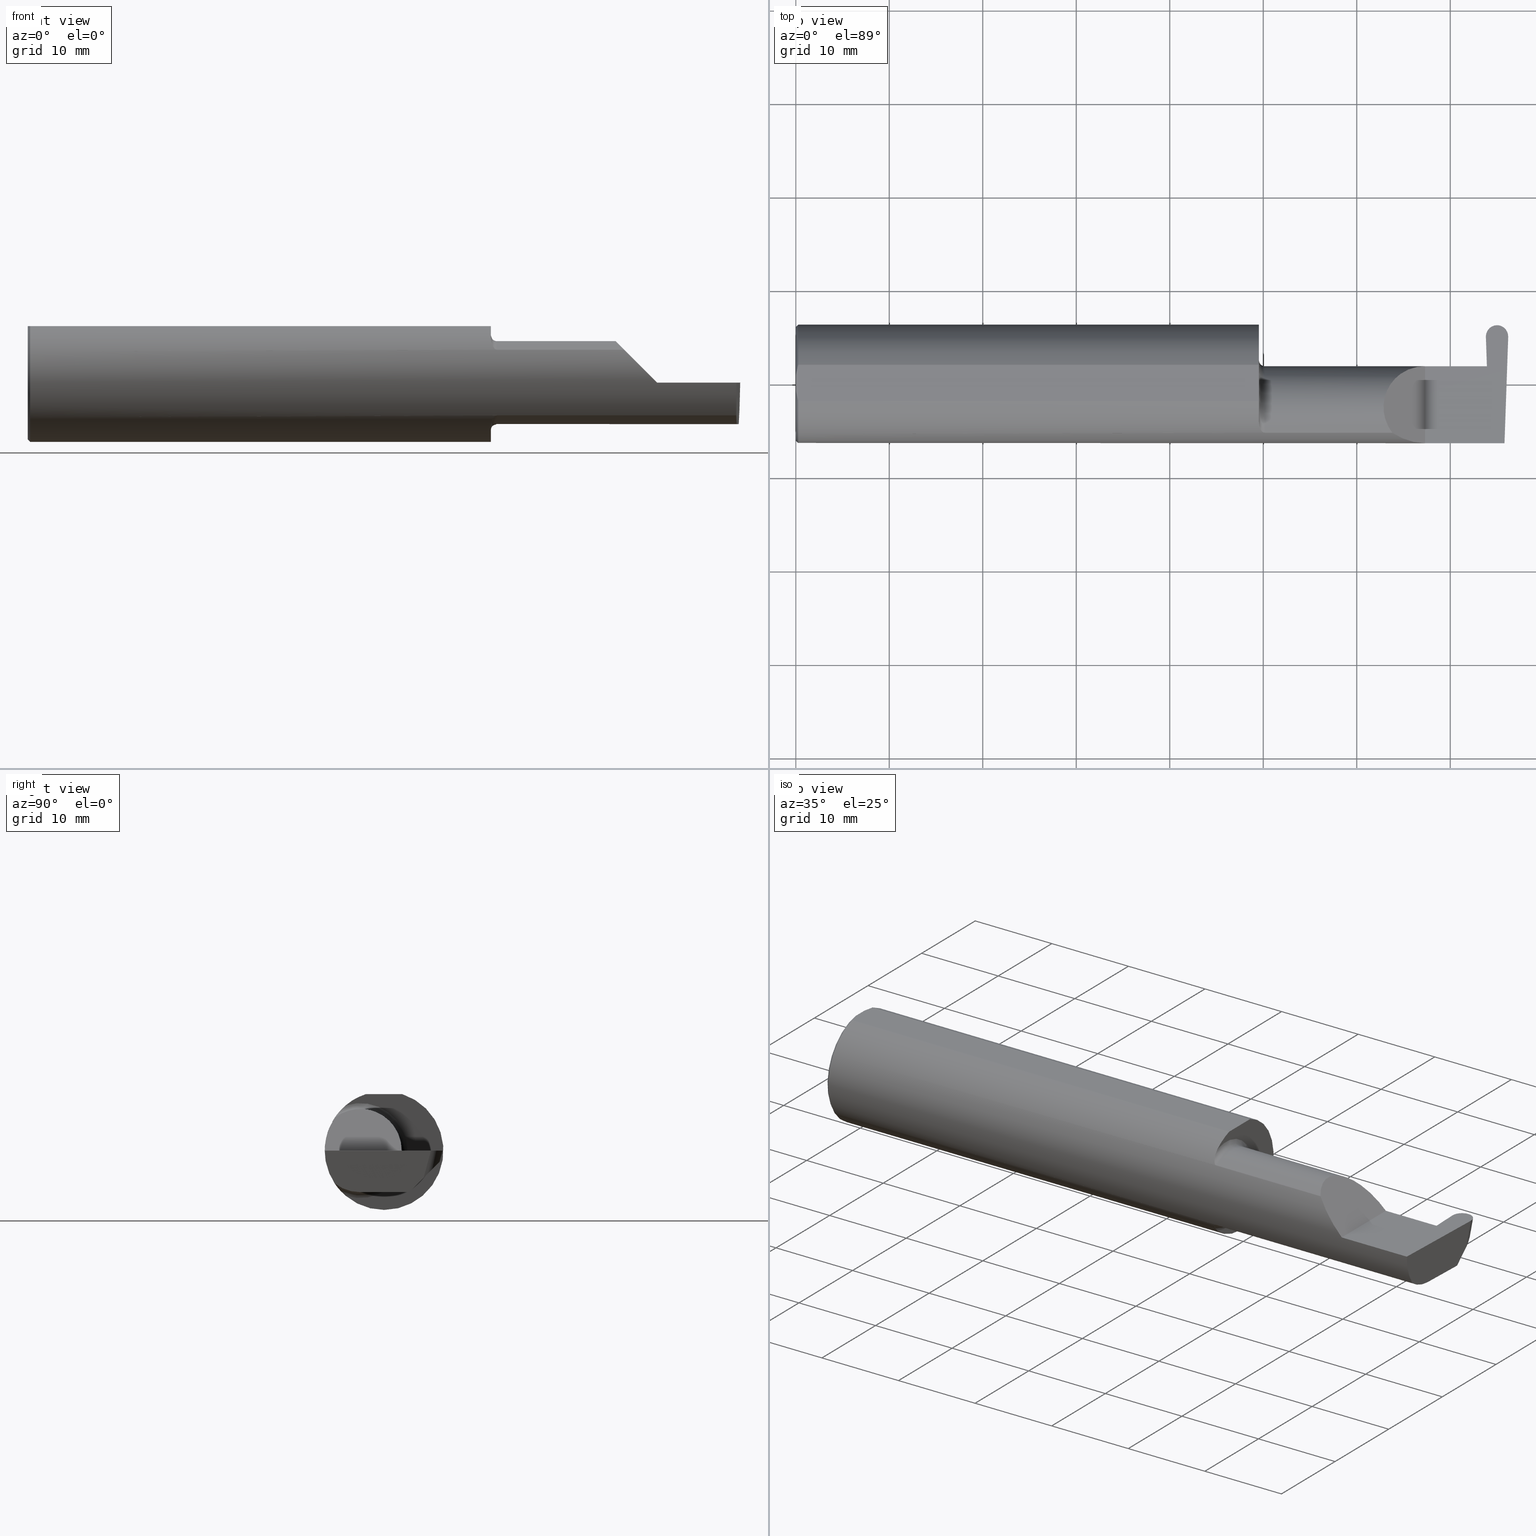
[diagram: canonical four-view strip — front | top / right | iso, engineering-drawing reading convention]
A machine part, canonical four-view strip (front | top / right | iso — engineering-drawing reading convention). The complete STEP part file that produces these views, byte-faithful:
ISO-10303-21;
HEADER;
FILE_DESCRIPTION (( 'STEP AP203' ),
    '1' );
FILE_NAME ('222461-GFR093-16.STEP',
    '2024-06-28T18:32:31',
    ( '' ),
    ( '' ),
    'SwSTEP 2.0',
    'SolidWorks 2024',
    '' );
FILE_SCHEMA (( 'CONFIG_CONTROL_DESIGN' ));
ENDSEC;

DATA;
#1 = LINE ( 'NONE', #58, #426 ) ;
#2 = CARTESIAN_POINT ( 'NONE',  ( 0.009999999999999856226, -0.07650098038587520299, 0.2378499999999998671 ) ) ;
#3 = EDGE_LOOP ( 'NONE', ( #669, #303, #521 ) ) ;
#4 = DIRECTION ( 'NONE',  ( 0.000000000000000000, 0.000000000000000000, 1.000000000000000000 ) ) ;
#5 = CARTESIAN_POINT ( 'NONE',  ( 2.912123349427337082, 0.07056399972054014369, -0.1057442486376025254 ) ) ;
#6 = PLANE ( 'NONE',  #707 ) ;
#7 = ORIENTED_EDGE ( 'NONE', *, *, #548, .T. ) ;
#8 = EDGE_CURVE ( 'NONE', #217, #620, #639, .T. ) ;
#9 = CARTESIAN_POINT ( 'NONE',  ( -0.002039370078740339320, 0.2348243371481683328, -0.04599999999999999922 ) ) ;
#10 = CARTESIAN_POINT ( 'NONE',  ( 2.910321839925223752, 0.07404339472834164937, -0.006107411922940873990 ) ) ;
#11 = CARTESIAN_POINT ( 'NONE',  ( 2.910211446934811264, 0.07414999999999995206, 0.000000000000000000 ) ) ;
#12 = ORIENTED_EDGE ( 'NONE', *, *, #179, .F. ) ;
#13 = AXIS2_PLACEMENT_3D ( 'NONE', #73, #349, #240 ) ;
#14 = APPROVAL_PERSON_ORGANIZATION ( #640, #497, #379 ) ;
#15 = FACE_OUTER_BOUND ( 'NONE', #443, .T. ) ;
#16 = CARTESIAN_POINT ( 'NONE',  ( 2.996855212037247362, 0.1664162189566759098, -0.1144081181914932133 ) ) ;
#17 = CARTESIAN_POINT ( 'NONE',  ( 2.952578855735824348, 0.2471499999999999808, 0.000000000000000000 ) ) ;
#18 = ORIENTED_EDGE ( 'NONE', *, *, #417, .F. ) ;
#19 = DIRECTION ( 'NONE',  ( 0.000000000000000000, -0.7071067811865514585, 0.7071067811865435759 ) ) ;
#20 = DIRECTION ( 'NONE',  ( 0.02590004391968206074, -0.2587322210431824421, -0.9656017944882974158 ) ) ;
#21 = CARTESIAN_POINT ( 'NONE',  ( 2.440421435000000194, -0.2080850024789289432, -0.1382955322609669968 ) ) ;
#22 = EDGE_CURVE ( 'NONE', #187, #171, #465, .T. ) ;
#23 = ORIENTED_EDGE ( 'NONE', *, *, #371, .F. ) ;
#24 = DIRECTION ( 'NONE',  ( -0.7071067811865511255, 0.000000000000000000, 0.7071067811865439090 ) ) ;
#25 = ORIENTED_EDGE ( 'NONE', *, *, #8, .T. ) ;
#26 = PRODUCT_RELATED_PRODUCT_CATEGORY ( 'detail', '', ( #69 ) ) ;
#27 = VECTOR ( 'NONE', #403, 39.37007874015748143 ) ;
#28 = AXIS2_PLACEMENT_3D ( 'NONE', #499, #230, #522 ) ;
#29 = DIRECTION ( 'NONE',  ( -0.03489949670249305885, 0.9993908270190959842, -0.000000000000000000 ) ) ;
#30 = CARTESIAN_POINT ( 'NONE',  ( 0.000000000000000000, 0.000000000000000000, 0.000000000000000000 ) ) ;
#31 = VERTEX_POINT ( 'NONE', #319 ) ;
#32 = B_SPLINE_CURVE_WITH_KNOTS ( 'NONE', 3,
 ( #77, #113, #331, #545 ),
 .UNSPECIFIED., .F., .F.,
 ( 4, 4 ),
 ( 0.000000000000000000, 1.000000000000000000 ),
 .UNSPECIFIED. ) ;
#33 = CARTESIAN_POINT ( 'NONE',  ( 2.953264014264175064, 0.2471499999999999808, 0.000000000000000000 ) ) ;
#34 = DIRECTION ( 'NONE',  ( -0.01806954526206907413, 0.01744955702544858864, 0.9996844524616943506 ) ) ;
#35 = ORIENTED_EDGE ( 'NONE', *, *, #709, .T. ) ;
#36 = CARTESIAN_POINT ( 'NONE',  ( 1.951385488563269988, -0.1808287530430326140, -0.1728790649396286516 ) ) ;
#37 = VERTEX_POINT ( 'NONE', #46 ) ;
#38 = FACE_OUTER_BOUND ( 'NONE', #167, .T. ) ;
#39 = AXIS2_PLACEMENT_3D ( 'NONE', #348, #287, #184 ) ;
#40 = APPROVAL_PERSON_ORGANIZATION ( #44, #311, #165 ) ;
#41 = CARTESIAN_POINT ( 'NONE',  ( 1.971718393013768944, -0.2077830475237240071, 0.1387513848711937614 ) ) ;
#42 = ORIENTED_EDGE ( 'NONE', *, *, #324, .T. ) ;
#43 = CARTESIAN_POINT ( 'NONE',  ( 1.975000000000000089, -0.2080850024789290265, 0.1382955322609667470 ) ) ;
#44 = PERSON_AND_ORGANIZATION ( #668, #581 ) ;
#45 = VECTOR ( 'NONE', #34, 39.37007874015748854 ) ;
#46 = CARTESIAN_POINT ( 'NONE',  ( 2.910321839925223752, 0.07404339472834164937, -0.006107411922940873990 ) ) ;
#47 = ADVANCED_FACE ( 'NONE', ( #154 ), #106, .F. ) ;
#48 =( NAMED_UNIT ( * ) SI_UNIT ( $, .STERADIAN. ) SOLID_ANGLE_UNIT ( ) );
#49 = EDGE_CURVE ( 'NONE', #584, #65, #98, .T. ) ;
#50 = DIRECTION ( 'NONE',  ( -0.03489949670249306579, 0.9993908270190960952, 0.000000000000000000 ) ) ;
#51 = ADVANCED_FACE ( 'NONE', ( #336 ), #68, .T. ) ;
#52 = CARTESIAN_POINT ( 'NONE',  ( 0.000000000000000000, -0.03090954545120560767, 0.2378499999999998671 ) ) ;
#53 = CALENDAR_DATE ( 2024, 28, 6 ) ;
#54 =( BOUNDED_CURVE ( )  B_SPLINE_CURVE ( 3, ( #135, #245, #460, #678 ),
 .UNSPECIFIED., .F., .T. ) 
 B_SPLINE_CURVE_WITH_KNOTS ( ( 4, 4 ),
 ( 1.637964922114648392, 3.237953570749846577 ),
 .UNSPECIFIED. ) 
 CURVE ( )  GEOMETRIC_REPRESENTATION_ITEM ( )  RATIONAL_B_SPLINE_CURVE ( ( 1.000000000000000000, 0.7978071872141893062, 0.7978071872141893062, 1.000000000000000000 ) ) 
 REPRESENTATION_ITEM ( '' )  );
#55 = VECTOR ( 'NONE', #479, 39.37007874015748854 ) ;
#56 = CARTESIAN_POINT ( 'NONE',  ( 2.905918923725884451, 0.1970717818336510108, 0.000000000000000000 ) ) ;
#57 = ORIENTED_EDGE ( 'NONE', *, *, #476, .T. ) ;
#58 = CARTESIAN_POINT ( 'NONE',  ( 1.950000000000000178, 0.07414999999999999369, 1.285879139104719253E-16 ) ) ;
#59 = LINE ( 'NONE', #605, #700 ) ;
#60 = CARTESIAN_POINT ( 'NONE',  ( 2.482823929317965028, 0.07414999999999997982, 0.1671760706820337450 ) ) ;
#61 = ORIENTED_EDGE ( 'NONE', *, *, #508, .F. ) ;
#62 = LINE ( 'NONE', #283, #514 ) ;
#63 = CYLINDRICAL_SURFACE ( 'NONE', #28, 0.1750000000000001277 ) ;
#64 = CARTESIAN_POINT ( 'NONE',  ( 0.000000000000000000, 0.000000000000000000, -0.2398500000000001742 ) ) ;
#65 = VERTEX_POINT ( 'NONE', #612 ) ;
#66 = CARTESIAN_POINT ( 'NONE',  ( 2.914374952050851508, -2.845228123214176286, -0.1794551390957415116 ) ) ;
#67 = CARTESIAN_POINT ( 'NONE',  ( 1.950000000000000178, 0.000000000000000000, 0.000000000000000000 ) ) ;
#68 = CYLINDRICAL_SURFACE ( 'NONE', #210, 0.04700000000000001399 ) ;
#69 = PRODUCT ( '222461-GFR093-16', '222461-GFR093-16', '', ( #532 ) ) ;
#70 = ORIENTED_EDGE ( 'NONE', *, *, #655, .F. ) ;
#71 = VECTOR ( 'NONE', #631, 39.37007874015748143 ) ;
#72 = CARTESIAN_POINT ( 'NONE',  ( 2.984317093749864647, -0.2498499999999999888, 0.000000000000000000 ) ) ;
#73 = CARTESIAN_POINT ( 'NONE',  ( 0.000000000000000000, 0.000000000000000000, 0.000000000000000000 ) ) ;
#74 = ADVANCED_FACE ( 'NONE', ( #130 ), #166, .F. ) ;
#75 = CARTESIAN_POINT ( 'NONE',  ( 1.950000000000000178, 0.2498499999999999888, 0.2378499999999998671 ) ) ;
#76 = ORIENTED_EDGE ( 'NONE', *, *, #255, .F. ) ;
#77 = CARTESIAN_POINT ( 'NONE',  ( 2.899063548541081836, 0.07404339472834169100, -0.006107411922938121851 ) ) ;
#78 = EDGE_CURVE ( 'NONE', #602, #31, #318, .T. ) ;
#79 = VERTEX_POINT ( 'NONE', #385 ) ;
#80 =( LENGTH_UNIT ( ) NAMED_UNIT ( * ) SI_UNIT ( $, .METRE. ) );
#81 = DIRECTION ( 'NONE',  ( 8.931410431717531613E-17, 1.000000000000000000, -0.000000000000000000 ) ) ;
#82 = ORIENTED_EDGE ( 'NONE', *, *, #103, .F. ) ;
#83 = ADVANCED_FACE ( 'NONE', ( #284 ), #116, .F. ) ;
#84 = AXIS2_PLACEMENT_3D ( 'NONE', #66, #180, #614 ) ;
#85 = AXIS2_PLACEMENT_3D ( 'NONE', #124, #235, #599 ) ;
#86 = CARTESIAN_POINT ( 'NONE',  ( 1.975000000000000089, -0.2080850024789289432, -0.1382955322609668025 ) ) ;
#87 = CARTESIAN_POINT ( 'NONE',  ( 2.910211446934811264, 0.07414999999999995206, -9.645561665750315126E-21 ) ) ;
#88 = ORIENTED_EDGE ( 'NONE', *, *, #261, .F. ) ;
#89 = ADVANCED_FACE ( 'NONE', ( #500 ), #175, .T. ) ;
#90 = CARTESIAN_POINT ( 'NONE',  ( 2.905871548989777509, 0.1984284167760241857, 0.000000000000000000 ) ) ;
#91 = ORIENTED_EDGE ( 'NONE', *, *, #272, .T. ) ;
#92 = CARTESIAN_POINT ( 'NONE',  ( 0.009999999999999856226, 0.000000000000000000, -0.2498499999999999888 ) ) ;
#93 = EDGE_LOOP ( 'NONE', ( #435, #586, #270, #225 ) ) ;
#94 = MANIFOLD_SOLID_BREP ( 'Radii', #200 ) ;
#95 = CYLINDRICAL_SURFACE ( 'NONE', #211, 0.2498499999999999888 ) ;
#96 = LOCAL_TIME ( 11, 32, 31.00000000000000000, #104 ) ;
#97 = EDGE_CURVE ( 'NONE', #282, #705, #333, .T. ) ;
#98 = LINE ( 'NONE', #208, #174 ) ;
#99 = ADVANCED_BREP_SHAPE_REPRESENTATION ( '222461-GFR093-16', ( #94, #502 ), #322 ) ;
#100 = COORDINATED_UNIVERSAL_TIME_OFFSET ( 8, 0, .BEHIND. ) ;
#101 = VERTEX_POINT ( 'NONE', #708 ) ;
#102 = ORIENTED_EDGE ( 'NONE', *, *, #542, .T. ) ;
#103 = EDGE_CURVE ( 'NONE', #171, #212, #432, .T. ) ;
#104 = COORDINATED_UNIVERSAL_TIME_OFFSET ( 8, 0, .BEHIND. ) ;
#105 = VECTOR ( 'NONE', #563, 39.37007874015748143 ) ;
#106 = PLANE ( 'NONE',  #321 ) ;
#107 = CC_DESIGN_PERSON_AND_ORGANIZATION_ASSIGNMENT ( #583, #316, ( #345 ) ) ;
#108 = SHAPE_DEFINITION_REPRESENTATION ( #594, #99 ) ;
#109 = ORIENTED_EDGE ( 'NONE', *, *, #265, .T. ) ;
#110 = CARTESIAN_POINT ( 'NONE',  ( -0.002039370078740339320, 0.2471499999999999808, 0.000000000000000000 ) ) ;
#111 = ORIENTED_EDGE ( 'NONE', *, *, #114, .F. ) ;
#112 = DIRECTION ( 'NONE',  ( 0.000000000000000000, 0.000000000000000000, -1.000000000000000000 ) ) ;
#113 = CARTESIAN_POINT ( 'NONE',  ( 2.899099083631634599, 0.07407892981889444006, -0.004071607948625410520 ) ) ;
#114 = EDGE_CURVE ( 'NONE', #282, #428, #394, .T. ) ;
#115 = AXIS2_PLACEMENT_3D ( 'NONE', #292, #134, #112 ) ;
#116 = PLANE ( 'NONE',  #380 ) ;
#117 = VERTEX_POINT ( 'NONE', #662 ) ;
#118 = CARTESIAN_POINT ( 'NONE',  ( 2.952921434999999928, 0.2348123830215256280, -0.04601195412664269707 ) ) ;
#119 = CARTESIAN_POINT ( 'NONE',  ( 2.912161853007074086, 0.1058243371481696893, -0.1750000000000000722 ) ) ;
#120 = CARTESIAN_POINT ( 'NONE',  ( 3.000000000000000444, -0.2500000000000000555, 0.000000000000000000 ) ) ;
#121 = CC_DESIGN_PERSON_AND_ORGANIZATION_ASSIGNMENT ( #320, #706, ( #556 ) ) ;
#122 = ORIENTED_EDGE ( 'NONE', *, *, #97, .T. ) ;
#123 = CARTESIAN_POINT ( 'NONE',  ( 2.999971321010222347, 0.1984284167760241857, 0.000000000000000000 ) ) ;
#124 = CARTESIAN_POINT ( 'NONE',  ( -0.002039370078740339320, 0.2471499999999999808, 0.000000000000000000 ) ) ;
#125 = CARTESIAN_POINT ( 'NONE',  ( 2.910211446934811264, 0.07414999999999995206, 0.000000000000000000 ) ) ;
#126 = ORIENTED_EDGE ( 'NONE', *, *, #574, .F. ) ;
#127 = EDGE_CURVE ( 'NONE', #628, #573, #512, .T. ) ;
#128 = LINE ( 'NONE', #554, #552 ) ;
#129 = CARTESIAN_POINT ( 'NONE',  ( 2.913428848522521708, -0.1008500000000001479, -0.1750000000000000444 ) ) ;
#130 = FACE_OUTER_BOUND ( 'NONE', #547, .T. ) ;
#131 = VECTOR ( 'NONE', #509, 39.37007874015748143 ) ;
#132 = ORIENTED_EDGE ( 'NONE', *, *, #407, .T. ) ;
#133 = CC_DESIGN_PERSON_AND_ORGANIZATION_ASSIGNMENT ( #376, #588, ( #69 ) ) ;
#134 = DIRECTION ( 'NONE',  ( 1.000000000000000000, 0.000000000000000000, 0.000000000000000000 ) ) ;
#135 = CARTESIAN_POINT ( 'NONE',  ( 2.999923946274115405, 0.1970717818336509553, 0.000000000000000000 ) ) ;
#136 = ORIENTED_EDGE ( 'NONE', *, *, #491, .F. ) ;
#137 = LINE ( 'NONE', #353, #105 ) ;
#138 = DIRECTION ( 'NONE',  ( -1.000000000000000000, -0.000000000000000000, -0.000000000000000000 ) ) ;
#139 = LINE ( 'NONE', #193, #71 ) ;
#140 = EDGE_LOOP ( 'NONE', ( #493, #160, #262, #12, #469, #151, #214, #645, #438 ) ) ;
#141 = DIRECTION ( 'NONE',  ( 8.931410431717531613E-17, 1.000000000000000000, 0.000000000000000000 ) ) ;
#142 = DIRECTION ( 'NONE',  ( 1.000000000000000000, -0.000000000000000000, -0.000000000000000000 ) ) ;
#143 = DIRECTION ( 'NONE',  ( -0.03701744261649772549, -0.7066221440565400025, -0.7066221440565478851 ) ) ;
#144 = ORIENTED_EDGE ( 'NONE', *, *, #371, .T. ) ;
#145 = AXIS2_PLACEMENT_3D ( 'NONE', #457, #408, #141 ) ;
#146 = CARTESIAN_POINT ( 'NONE',  ( 2.899170153812740125, 0.07414999999999995206, 0.000000000000000000 ) ) ;
#147 = FACE_OUTER_BOUND ( 'NONE', #3, .T. ) ;
#148 = ORIENTED_EDGE ( 'NONE', *, *, #548, .F. ) ;
#149 = CARTESIAN_POINT ( 'NONE',  ( 2.511704467739031887, -0.2080850024789288599, 0.1382955322609669968 ) ) ;
#150 = EDGE_CURVE ( 'NONE', #613, #282, #451, .T. ) ;
#151 = ORIENTED_EDGE ( 'NONE', *, *, #429, .F. ) ;
#152 = EDGE_CURVE ( 'NONE', #259, #695, #224, .T. ) ;
#153 = CARTESIAN_POINT ( 'NONE',  ( 2.986970135337519761, -0.08635016968773913393, -0.1750000000000000722 ) ) ;
#154 = FACE_OUTER_BOUND ( 'NONE', #264, .T. ) ;
#155 = AXIS2_PLACEMENT_3D ( 'NONE', #125, #398, #340 ) ;
#156 = CARTESIAN_POINT ( 'NONE',  ( 1.968876997637615256, -0.2068363917296600352, 0.1401586554522230021 ) ) ;
#157 = DATE_TIME_ROLE ( 'creation_date' ) ;
#158 = ORIENTED_EDGE ( 'NONE', *, *, #417, .T. ) ;
#159 = APPROVAL_STATUS ( 'not_yet_approved' ) ;
#160 = ORIENTED_EDGE ( 'NONE', *, *, #114, .T. ) ;
#161 = AXIS2_PLACEMENT_3D ( 'NONE', #358, #416, #569 ) ;
#162 = VECTOR ( 'NONE', #671, 39.37007874015748854 ) ;
#163 = LOCAL_TIME ( 11, 32, 31.00000000000000000, #271 ) ;
#164 = CARTESIAN_POINT ( 'NONE',  ( 1.964343523383979440, -0.2041337200786084161, 0.1440846171672512110 ) ) ;
#165 = APPROVAL_ROLE ( '' ) ;
#166 = PLANE ( 'NONE',  #344 ) ;
#167 = EDGE_LOOP ( 'NONE', ( #334, #158, #35, #592, #341, #328, #126, #307, #543, #597, #242, #285, #425 ) ) ;
#168 = ADVANCED_FACE ( 'NONE', ( #657 ), #6, .F. ) ;
#169 = DIRECTION ( 'NONE',  ( 1.000000000000000000, -8.931410431717531613E-17, 0.000000000000000000 ) ) ;
#170 = LINE ( 'NONE', #11, #603 ) ;
#171 = VERTEX_POINT ( 'NONE', #181 ) ;
#172 = DIRECTION ( 'NONE',  ( -1.000000000000000000, -0.000000000000000000, -0.000000000000000000 ) ) ;
#173 = CARTESIAN_POINT ( 'NONE',  ( 0.009999999999999856226, -0.07650098038587520299, 0.2378499999999998671 ) ) ;
#174 = VECTOR ( 'NONE', #372, 39.37007874015748854 ) ;
#175 = CYLINDRICAL_SURFACE ( 'NONE', #219, 0.04700000000000001399 ) ;
#176 = CARTESIAN_POINT ( 'NONE',  ( 2.986463790105515770, -0.1008500000000003838, -0.1750000000000000722 ) ) ;
#177 = DIRECTION ( 'NONE',  ( 1.000000000000000000, -8.931410431717531613E-17, 0.000000000000000000 ) ) ;
#178 = PLANE ( 'NONE',  #155 ) ;
#179 = EDGE_CURVE ( 'NONE', #533, #414, #170, .T. ) ;
#180 = DIRECTION ( 'NONE',  ( 0.9998367324388628408, 0.0003153570480505020501, 0.01806679318280274976 ) ) ;
#181 = CARTESIAN_POINT ( 'NONE',  ( 1.975000000000000089, -0.2080850024789290265, 0.1382955322609667470 ) ) ;
#182 = EDGE_LOOP ( 'NONE', ( #7, #233, #190 ) ) ;
#183 = ADVANCED_FACE ( 'NONE', ( #232 ), #178, .F. ) ;
#184 = DIRECTION ( 'NONE',  ( 0.000000000000000000, 1.000000000000000000, 0.000000000000000000 ) ) ;
#185 = CARTESIAN_POINT ( 'NONE',  ( 0.009999999999999856226, 0.07650098038587520299, 0.2378499999999998671 ) ) ;
#186 = CARTESIAN_POINT ( 'NONE',  ( 2.952578855735824348, 0.2471499999999999808, 0.000000000000000000 ) ) ;
#187 = VERTEX_POINT ( 'NONE', #306 ) ;
#188 = PLANE ( 'NONE',  #85 ) ;
#189 = DIRECTION ( 'NONE',  ( 0.000000000000000000, 0.000000000000000000, -1.000000000000000000 ) ) ;
#190 = ORIENTED_EDGE ( 'NONE', *, *, #542, .F. ) ;
#191 = LINE ( 'NONE', #90, #710 ) ;
#192 = ADVANCED_FACE ( 'NONE', ( #147 ), #363, .F. ) ;
#193 = CARTESIAN_POINT ( 'NONE',  ( 1.950000000000000178, 0.07404339472834160774, -0.006107411922942590499 ) ) ;
#194 = ORIENTED_EDGE ( 'NONE', *, *, #179, .T. ) ;
#195 = CARTESIAN_POINT ( 'NONE',  ( 2.996855212037247362, 0.1664162189566759098, -0.1144081181914932133 ) ) ;
#196 = CARTESIAN_POINT ( 'NONE',  ( 1.950000000000000178, -0.07650098038587527238, 0.2378499999999998671 ) ) ;
#197 = EDGE_CURVE ( 'NONE', #65, #675, #464, .T. ) ;
#198 = CARTESIAN_POINT ( 'NONE',  ( 0.000000000000000000, 0.000000000000000000, -0.2398500000000001742 ) ) ;
#199 = ORIENTED_EDGE ( 'NONE', *, *, #587, .F. ) ;
#200 = CLOSED_SHELL ( 'NONE', ( #579, #183, #704, #192, #83, #423, #168, #401, #636, #623, #539, #74, #593, #374, #47, #439, #503, #89, #51 ) ) ;
#201 = CARTESIAN_POINT ( 'NONE',  ( 2.986463790105515770, -0.1008500000000003838, -0.1750000000000000722 ) ) ;
#202 = CARTESIAN_POINT ( 'NONE',  ( 1.967611663768900065, -0.2061921161193829843, -0.1411075319999377520 ) ) ;
#203 = EDGE_CURVE ( 'NONE', #37, #101, #139, .T. ) ;
#204 = ORIENTED_EDGE ( 'NONE', *, *, #571, .F. ) ;
#205 = CARTESIAN_POINT ( 'NONE',  ( 2.998910637237953924, 0.2056520186124942973, -0.07517231853567445110 ) ) ;
#206 = EDGE_LOOP ( 'NONE', ( #431, #61, #88, #136, #268 ) ) ;
#207 = CALENDAR_DATE ( 2024, 28, 6 ) ;
#208 = CARTESIAN_POINT ( 'NONE',  ( 2.999933069103034811, 0.1971629156477838762, 0.0003401160246315276196 ) ) ;
#209 = PERSON_AND_ORGANIZATION ( #668, #581 ) ;
#210 = AXIS2_PLACEMENT_3D ( 'NONE', #615, #492, #607 ) ;
#211 = AXIS2_PLACEMENT_3D ( 'NONE', #463, #138, #258 ) ;
#212 = VERTEX_POINT ( 'NONE', #410 ) ;
#213 = APPROVAL_DATE_TIME ( #643, #497 ) ;
#214 = ORIENTED_EDGE ( 'NONE', *, *, #709, .F. ) ;
#215 = APPLICATION_PROTOCOL_DEFINITION ( 'international standard', 'config_control_design', 1994, #576 ) ;
#216 = APPLICATION_CONTEXT ( 'configuration controlled 3d designs of mechanical parts and assemblies' ) ;
#217 = VERTEX_POINT ( 'NONE', #468 ) ;
#218 = SECURITY_CLASSIFICATION_LEVEL ( 'unclassified' ) ;
#219 = AXIS2_PLACEMENT_3D ( 'NONE', #487, #504, #496 ) ;
#220 = LOCAL_TIME ( 11, 32, 31.00000000000000000, #480 ) ;
#221 = CARTESIAN_POINT ( 'NONE',  ( 3.402190948718818220, -0.1008500000000003838, -0.1750000000000000722 ) ) ;
#222 = EDGE_CURVE ( 'NONE', #602, #695, #641, .T. ) ;
#223 = DIRECTION ( 'NONE',  ( 1.000000000000000000, -8.931410431717531613E-17, 0.000000000000000000 ) ) ;
#224 = LINE ( 'NONE', #64, #162 ) ;
#225 = ORIENTED_EDGE ( 'NONE', *, *, #286, .T. ) ;
#226 = CARTESIAN_POINT ( 'NONE',  ( 2.910211446934811264, 0.07414999999999995206, 0.000000000000000000 ) ) ;
#227 = CARTESIAN_POINT ( 'NONE',  ( 0.000000000000000000, 0.000000000000000000, 0.000000000000000000 ) ) ;
#228 = ORIENTED_EDGE ( 'NONE', *, *, #633, .T. ) ;
#229 = CARTESIAN_POINT ( 'NONE',  ( 3.402190948718818220, -0.1008500000000003838, -0.1750000000000000722 ) ) ;
#230 = DIRECTION ( 'NONE',  ( -1.000000000000000000, 8.931410431717531613E-17, -0.000000000000000000 ) ) ;
#231 = CONICAL_SURFACE ( 'NONE', #13, 0.2398500000000001742, 0.7853981633974466137 ) ;
#232 = FACE_OUTER_BOUND ( 'NONE', #368, .T. ) ;
#233 = ORIENTED_EDGE ( 'NONE', *, *, #298, .F. ) ;
#234 = CARTESIAN_POINT ( 'NONE',  ( 2.440421435000000194, -0.2080850024789289432, 0.1382955322609669968 ) ) ;
#235 = DIRECTION ( 'NONE',  ( 0.000000000000000000, -0.9659258262890682012, 0.2588190451025209615 ) ) ;
#236 = CC_DESIGN_PERSON_AND_ORGANIZATION_ASSIGNMENT ( #326, #536, ( #556 ) ) ;
#237 = CARTESIAN_POINT ( 'NONE',  ( 2.409263745716142768, -0.07597241004310675838, 0.2407362542838553388 ) ) ;
#238 = ORIENTED_EDGE ( 'NONE', *, *, #78, .F. ) ;
#239 = LINE ( 'NONE', #670, #663 ) ;
#240 = DIRECTION ( 'NONE',  ( 0.000000000000000000, 0.000000000000000000, -1.000000000000000000 ) ) ;
#241 = DIRECTION ( 'NONE',  ( -1.000000000000000000, -0.000000000000000000, -0.000000000000000000 ) ) ;
#242 = ORIENTED_EDGE ( 'NONE', *, *, #378, .F. ) ;
#243 = PLANE ( 'NONE',  #145 ) ;
#244 = EDGE_CURVE ( 'NONE', #651, #79, #686, .T. ) ;
#245 = CARTESIAN_POINT ( 'NONE',  ( 3.000942059314616550, 0.2262267247321108621, 2.658190119782672195E-18 ) ) ;
#246 = AXIS2_PLACEMENT_3D ( 'NONE', #392, #172, #604 ) ;
#247 = VERTEX_POINT ( 'NONE', #301 ) ;
#248 = DIRECTION ( 'NONE',  ( -8.931410431717531613E-17, -1.000000000000000000, 0.000000000000000000 ) ) ;
#249 = CARTESIAN_POINT ( 'NONE',  ( 0.000000000000000000, -0.07650098038587520299, 0.2378499999999998671 ) ) ;
#250 = EDGE_LOOP ( 'NONE', ( #558, #76, #411, #312 ) ) ;
#251 = CARTESIAN_POINT ( 'NONE',  ( 1.949999999999999956, -0.1716188362992555616, -0.1820560320165479362 ) ) ;
#252 = LINE ( 'NONE', #21, #329 ) ;
#253 = VERTEX_POINT ( 'NONE', #561 ) ;
#254 = CARTESIAN_POINT ( 'NONE',  ( 1.968863362722770960, -0.2068301641248770362, -0.1401678546132360259 ) ) ;
#255 = EDGE_CURVE ( 'NONE', #117, #259, #690, .T. ) ;
#256 = ORIENTED_EDGE ( 'NONE', *, *, #103, .T. ) ;
#257 = APPROVAL_PERSON_ORGANIZATION ( #209, #484, #433 ) ;
#258 = DIRECTION ( 'NONE',  ( 0.000000000000000000, 0.000000000000000000, 1.000000000000000000 ) ) ;
#259 = VERTEX_POINT ( 'NONE', #198 ) ;
#260 = CARTESIAN_POINT ( 'NONE',  ( 1.971700027347578876, -0.2077785947292768720, -0.1387580622202825575 ) ) ;
#261 = EDGE_CURVE ( 'NONE', #613, #658, #618, .T. ) ;
#262 = ORIENTED_EDGE ( 'NONE', *, *, #644, .F. ) ;
#263 = APPLICATION_PROTOCOL_DEFINITION ( 'international standard', 'config_control_design', 1994, #216 ) ;
#264 = EDGE_LOOP ( 'NONE', ( #472, #351, #418, #399, #562, #299 ) ) ;
#265 = EDGE_CURVE ( 'NONE', #602, #651, #510, .T. ) ;
#266 = APPROVAL_STATUS ( 'not_yet_approved' ) ;
#267 = AXIS2_PLACEMENT_3D ( 'NONE', #518, #367, #248 ) ;
#268 = ORIENTED_EDGE ( 'NONE', *, *, #308, .F. ) ;
#269 = DATE_AND_TIME ( #702, #220 ) ;
#270 = ORIENTED_EDGE ( 'NONE', *, *, #574, .T. ) ;
#271 = COORDINATED_UNIVERSAL_TIME_OFFSET ( 8, 0, .BEHIND. ) ;
#272 = EDGE_CURVE ( 'NONE', #584, #511, #627, .T. ) ;
#273 = DIRECTION ( 'NONE',  ( -1.224646799147351975E-16, 0.000000000000000000, -1.000000000000000000 ) ) ;
#274 = APPROVAL_STATUS ( 'not_yet_approved' ) ;
#275 = CIRCLE ( 'NONE', #676, 0.2498499999999999888 ) ;
#276 = LOCAL_TIME ( 11, 32, 31.00000000000000000, #100 ) ;
#277 = DIRECTION ( 'NONE',  ( -0.02590004391968206768, 0.2587322210431824421, 0.9656017944882974158 ) ) ;
#278 = CC_DESIGN_PERSON_AND_ORGANIZATION_ASSIGNMENT ( #384, #698, ( #600 ) ) ;
#279 =( BOUNDED_CURVE ( )  B_SPLINE_CURVE ( 3, ( #388, #400, #501, #118 ),
 .UNSPECIFIED., .F., .T. ) 
 B_SPLINE_CURVE_WITH_KNOTS ( ( 4, 4 ),
 ( 1.556556287886220469, 3.137579012548759039 ),
 .UNSPECIFIED. ) 
 CURVE ( )  GEOMETRIC_REPRESENTATION_ITEM ( )  RATIONAL_B_SPLINE_CURVE ( ( 1.000000000000000000, 0.8023213171586003334, 0.8023213171586003334, 1.000000000000000000 ) ) 
 REPRESENTATION_ITEM ( '' )  );
#280 = ORIENTED_EDGE ( 'NONE', *, *, #286, .F. ) ;
#281 = FACE_OUTER_BOUND ( 'NONE', #529, .T. ) ;
#282 = VERTEX_POINT ( 'NONE', #186 ) ;
#283 = CARTESIAN_POINT ( 'NONE',  ( 2.951281560477486465, 0.2273459922177707149, -0.07390956323676890760 ) ) ;
#284 = FACE_OUTER_BOUND ( 'NONE', #140, .T. ) ;
#285 = ORIENTED_EDGE ( 'NONE', *, *, #362, .F. ) ;
#286 = EDGE_CURVE ( 'NONE', #187, #654, #288, .T. ) ;
#287 = DIRECTION ( 'NONE',  ( 1.000000000000000000, -8.931410431717531613E-17, 0.000000000000000000 ) ) ;
#288 = CIRCLE ( 'NONE', #161, 0.1999999999999999833 ) ;
#289 = DIRECTION ( 'NONE',  ( -0.000000000000000000, 1.223176342469858371E-16, 1.000000000000000000 ) ) ;
#290 = CIRCLE ( 'NONE', #691, 0.2498499999999999888 ) ;
#291 = ORIENTED_EDGE ( 'NONE', *, *, #661, .T. ) ;
#292 = CARTESIAN_POINT ( 'NONE',  ( 0.000000000000000000, 0.000000000000000000, 0.000000000000000000 ) ) ;
#293 = CARTESIAN_POINT ( 'NONE',  ( 0.005466242398876384675, 0.06169385855649840017, 0.2378499999999998671 ) ) ;
#294 = CARTESIAN_POINT ( 'NONE',  ( 2.952921434999999928, 0.2377865837197746524, -0.03493385853676862773 ) ) ;
#295 = EDGE_LOOP ( 'NONE', ( #360, #82, #364, #632, #648, #505, #523, #148, #478, #551 ) ) ;
#296 = CARTESIAN_POINT ( 'NONE',  ( 2.984022185481226774, -0.1771157075472509224, -0.1623092683844332140 ) ) ;
#297 = CARTESIAN_POINT ( 'NONE',  ( 2.996324603059298930, 0.1562874789046420076, -0.1245368582435272126 ) ) ;
#298 = EDGE_CURVE ( 'NONE', #217, #37, #455, .T. ) ;
#299 = ORIENTED_EDGE ( 'NONE', *, *, #608, .T. ) ;
#300 = LINE ( 'NONE', #153, #535 ) ;
#301 = CARTESIAN_POINT ( 'NONE',  ( 2.650000000000000355, -0.2498499999999999610, 4.286263797015729199E-17 ) ) ;
#302 = CIRCLE ( 'NONE', #246, 0.2398500000000001742 ) ;
#303 = ORIENTED_EDGE ( 'NONE', *, *, #647, .F. ) ;
#304 = EDGE_CURVE ( 'NONE', #516, #212, #252, .T. ) ;
#305 = CARTESIAN_POINT ( 'NONE',  ( 2.993681016992925770, 0.1058243371481696476, -0.1750000000000001277 ) ) ;
#306 = CARTESIAN_POINT ( 'NONE',  ( 1.950000000000000178, -0.1616050818046604609, 0.1905487340154980169 ) ) ;
#307 = ORIENTED_EDGE ( 'NONE', *, *, #265, .F. ) ;
#308 = EDGE_CURVE ( 'NONE', #65, #705, #54, .T. ) ;
#309 = EDGE_LOOP ( 'NONE', ( #132, #57, #456, #91, #405 ) ) ;
#310 = CARTESIAN_POINT ( 'NONE',  ( 1.956147634408388569, -0.1932733126899461862, -0.1584637047788197695 ) ) ;
#311 = APPROVAL ( #266, 'UNSPECIFIED' ) ;
#312 = ORIENTED_EDGE ( 'NONE', *, *, #685, .F. ) ;
#313 = AXIS2_PLACEMENT_3D ( 'NONE', #123, #335, #506 ) ;
#314 = CC_DESIGN_APPROVAL ( #311, ( #345 ) ) ;
#315 = CARTESIAN_POINT ( 'NONE',  ( 1.950000000000000178, -0.1616050818046604609, 0.1905487340154980169 ) ) ;
#316 = PERSON_AND_ORGANIZATION_ROLE ( 'classification_officer' ) ;
#317 = CARTESIAN_POINT ( 'NONE',  ( 1.950367168219774960, -0.1713400252854603567, 0.1819601557798506131 ) ) ;
#318 = B_SPLINE_CURVE_WITH_KNOTS ( 'NONE', 3,
 ( #2, #447, #601, #52 ),
 .UNSPECIFIED., .F., .F.,
 ( 4, 4 ),
 ( 0.01317593029100230795, 0.01435802289191462008 ),
 .UNSPECIFIED. ) ;
#319 = CARTESIAN_POINT ( 'NONE',  ( 0.000000000000000000, -0.03090954545120560767, 0.2378499999999998671 ) ) ;
#320 = PERSON_AND_ORGANIZATION ( #668, #581 ) ;
#321 = AXIS2_PLACEMENT_3D ( 'NONE', #323, #537, #50 ) ;
#322 =( GEOMETRIC_REPRESENTATION_CONTEXT ( 3 ) GLOBAL_UNCERTAINTY_ASSIGNED_CONTEXT ( ( #494 ) ) GLOBAL_UNIT_ASSIGNED_CONTEXT ( ( #412, #527, #48 ) ) REPRESENTATION_CONTEXT ( 'NONE', 'WORKASPACE' ) );
#323 = CARTESIAN_POINT ( 'NONE',  ( 2.905871548989777509, 0.1984284167760241857, 0.000000000000000000 ) ) ;
#324 = EDGE_CURVE ( 'NONE', #386, #253, #619, .T. ) ;
#325 = CARTESIAN_POINT ( 'NONE',  ( 2.919967132617691696, -0.1176896267254949752, -0.1750000000000000722 ) ) ;
#326 = PERSON_AND_ORGANIZATION ( #668, #581 ) ;
#327 = CARTESIAN_POINT ( 'NONE',  ( 2.904900810685382861, 0.2262267247321106678, 1.148125750367493843E-17 ) ) ;
#328 = ORIENTED_EDGE ( 'NONE', *, *, #22, .F. ) ;
#329 = VECTOR ( 'NONE', #404, 39.37007874015748143 ) ;
#330 = CARTESIAN_POINT ( 'NONE',  ( 2.905918923725884451, 0.1970717818336510108, 0.000000000000000000 ) ) ;
#331 = CARTESIAN_POINT ( 'NONE',  ( 2.899134618722187362, 0.07411446490944718912, -0.002035803974312705260 ) ) ;
#332 = VECTOR ( 'NONE', #684, 39.37007874015748143 ) ;
#333 = LINE ( 'NONE', #110, #488 ) ;
#334 = ORIENTED_EDGE ( 'NONE', *, *, #304, .F. ) ;
#335 = DIRECTION ( 'NONE',  ( -0.9992386149554828290, 0.03489418134010630057, 0.01745240643728358798 ) ) ;
#336 = FACE_OUTER_BOUND ( 'NONE', #347, .T. ) ;
#337 = ORIENTED_EDGE ( 'NONE', *, *, #197, .T. ) ;
#338 = FACE_OUTER_BOUND ( 'NONE', #182, .T. ) ;
#339 = FACE_OUTER_BOUND ( 'NONE', #430, .T. ) ;
#340 = DIRECTION ( 'NONE',  ( 0.000000000000000000, -0.01745240643728358451, -0.9998476951563912696 ) ) ;
#341 = ORIENTED_EDGE ( 'NONE', *, *, #481, .F. ) ;
#342 = CARTESIAN_POINT ( 'NONE',  ( 2.983360130692194634, -0.2080850024789289987, -0.1382955322609669968 ) ) ;
#343 = CARTESIAN_POINT ( 'NONE',  ( 0.000000000000000000, 0.03090954545120574992, 0.2378499999999998671 ) ) ;
#344 = AXIS2_PLACEMENT_3D ( 'NONE', #221, #289, #538 ) ;
#345 = SECURITY_CLASSIFICATION ( '', '', #218 ) ;
#346 = DIRECTION ( 'NONE',  ( 1.000000000000000000, 0.000000000000000000, 0.000000000000000000 ) ) ;
#347 = EDGE_LOOP ( 'NONE', ( #111, #466, #382, #625, #199 ) ) ;
#348 = CARTESIAN_POINT ( 'NONE',  ( 1.950000000000000178, 0.000000000000000000, 0.000000000000000000 ) ) ;
#349 = DIRECTION ( 'NONE',  ( 1.000000000000000000, 0.000000000000000000, 0.000000000000000000 ) ) ;
#350 = CARTESIAN_POINT ( 'NONE',  ( 2.650000000000000355, -0.2500000000000000555, 4.286263797015729199E-17 ) ) ;
#351 = ORIENTED_EDGE ( 'NONE', *, *, #587, .T. ) ;
#352 =( BOUNDED_CURVE ( )  B_SPLINE_CURVE ( 3, ( #462, #296, #688, #201 ),
 .UNSPECIFIED., .F., .T. ) 
 B_SPLINE_CURVE_WITH_KNOTS ( ( 4, 4 ),
 ( 0.4474640105399487200, 1.107026853503851438 ),
 .UNSPECIFIED. ) 
 CURVE ( )  GEOMETRIC_REPRESENTATION_ITEM ( )  RATIONAL_B_SPLINE_CURVE ( ( 1.000000000000000000, 0.9640754331822833922, 0.9640754331822833922, 1.000000000000000000 ) ) 
 REPRESENTATION_ITEM ( '' )  );
#353 = CARTESIAN_POINT ( 'NONE',  ( 2.913428897145816432, -0.1010041597270662228, -0.1750000000000000722 ) ) ;
#354 = DIRECTION ( 'NONE',  ( -1.000000000000000000, -0.000000000000000000, -0.000000000000000000 ) ) ;
#355 = CARTESIAN_POINT ( 'NONE',  ( 2.952921434999999928, 0.2437277550733770448, -0.01277199194210160843 ) ) ;
#356 = EDGE_LOOP ( 'NONE', ( #693, #485, #122 ) ) ;
#357 = CARTESIAN_POINT ( 'NONE',  ( 2.511704467739031887, -0.2080850024789288599, 0.1382955322609669968 ) ) ;
#358 = CARTESIAN_POINT ( 'NONE',  ( 1.950000000000000178, -0.1008500000000000507, 0.000000000000000000 ) ) ;
#359 = VECTOR ( 'NONE', #143, 39.37007874015748143 ) ;
#360 = ORIENTED_EDGE ( 'NONE', *, *, #304, .T. ) ;
#361 = VECTOR ( 'NONE', #142, 39.37007874015748143 ) ;
#362 = EDGE_CURVE ( 'NONE', #654, #79, #616, .T. ) ;
#363 = PLANE ( 'NONE',  #534 ) ;
#364 = ORIENTED_EDGE ( 'NONE', *, *, #481, .T. ) ;
#365 = DIRECTION ( 'NONE',  ( 0.000000000000000000, 0.000000000000000000, -1.000000000000000000 ) ) ;
#366 = ORIENTED_EDGE ( 'NONE', *, *, #655, .T. ) ;
#367 = DIRECTION ( 'NONE',  ( -1.000000000000000000, 8.931410431717531613E-17, -0.000000000000000000 ) ) ;
#368 = EDGE_LOOP ( 'NONE', ( #482, #672, #448, #194 ) ) ;
#369 = VECTOR ( 'NONE', #20, 39.37007874015748854 ) ;
#370 = CALENDAR_DATE ( 2024, 28, 6 ) ;
#371 = EDGE_CURVE ( 'NONE', #259, #31, #302, .T. ) ;
#372 = DIRECTION ( 'NONE',  ( 0.02590004391968220646, 0.2587322210431824421, 0.9656017944882974158 ) ) ;
#373 = DATE_AND_TIME ( #427, #276 ) ;
#374 = ADVANCED_FACE ( 'NONE', ( #446 ), #598, .F. ) ;
#375 = ORIENTED_EDGE ( 'NONE', *, *, #255, .T. ) ;
#376 = PERSON_AND_ORGANIZATION ( #668, #581 ) ;
#377 = CARTESIAN_POINT ( 'NONE',  ( 1.958182335268384477, -0.1972192205116131969, 0.1535061413537209540 ) ) ;
#378 = EDGE_CURVE ( 'NONE', #79, #577, #128, .T. ) ;
#379 = APPROVAL_ROLE ( '' ) ;
#380 = AXIS2_PLACEMENT_3D ( 'NONE', #120, #273, #441 ) ;
#381 = LOCAL_TIME ( 11, 32, 31.00000000000000000, #486 ) ;
#382 = ORIENTED_EDGE ( 'NONE', *, *, #261, .T. ) ;
#383 = CC_DESIGN_DATE_AND_TIME_ASSIGNMENT ( #649, #157, ( #600 ) ) ;
#384 = PERSON_AND_ORGANIZATION ( #668, #581 ) ;
#385 = CARTESIAN_POINT ( 'NONE',  ( 1.950000000000000178, 0.07650098038587520299, 0.2378499999999998671 ) ) ;
#386 = VERTEX_POINT ( 'NONE', #176 ) ;
#387 = B_SPLINE_CURVE_WITH_KNOTS ( 'NONE', 3,
 ( #86, #409, #260, #254, #202, #626, #477, #572, #310, #36, #251, #419 ),
 .UNSPECIFIED., .F., .F.,
 ( 4, 2, 2, 2, 2, 4 ),
 ( 1.964491429042083594E-07, 0.0001260981470478292604, 0.0002519998449527543409, 0.0005038032407626184339, 0.001007410032382348138, 0.002014623615621812750 ),
 .UNSPECIFIED. ) ;
#388 = CARTESIAN_POINT ( 'NONE',  ( 2.908987657962752937, 0.1664162189566759653, -0.1144081181914931161 ) ) ;
#389 = DIRECTION ( 'NONE',  ( -1.000000000000000000, 8.931410431717531613E-17, -0.000000000000000000 ) ) ;
#390 = ORIENTED_EDGE ( 'NONE', *, *, #22, .T. ) ;
#391 = VECTOR ( 'NONE', #673, 39.37007874015748143 ) ;
#392 = CARTESIAN_POINT ( 'NONE',  ( 0.000000000000000000, 0.000000000000000000, 0.000000000000000000 ) ) ;
#393 = FACE_OUTER_BOUND ( 'NONE', #295, .T. ) ;
#394 =( BOUNDED_CURVE ( )  B_SPLINE_CURVE ( 3, ( #17, #402, #327, #56 ),
 .UNSPECIFIED., .F., .T. ) 
 B_SPLINE_CURVE_WITH_KNOTS ( ( 4, 4 ),
 ( 3.045231736429750757, 4.645220385064936508 ),
 .UNSPECIFIED. ) 
 CURVE ( )  GEOMETRIC_REPRESENTATION_ITEM ( )  RATIONAL_B_SPLINE_CURVE ( ( 1.000000000000000000, 0.7978071872141923038, 0.7978071872141923038, 1.000000000000000000 ) ) 
 REPRESENTATION_ITEM ( '' )  );
#395 = CARTESIAN_POINT ( 'NONE',  ( 2.650000000000000355, 0.07414999999999993818, 1.285879139104719253E-16 ) ) ;
#396 = VERTEX_POINT ( 'NONE', #610 ) ;
#397 = FACE_OUTER_BOUND ( 'NONE', #250, .T. ) ;
#398 = DIRECTION ( 'NONE',  ( 0.000000000000000000, -0.9998476951563912696, 0.01745240643728358451 ) ) ;
#399 = ORIENTED_EDGE ( 'NONE', *, *, #8, .F. ) ;
#400 = CARTESIAN_POINT ( 'NONE',  ( 2.906932232762046375, 0.2056520186124942418, -0.07517231853567442335 ) ) ;
#401 = ADVANCED_FACE ( 'NONE', ( #397 ), #650, .T. ) ;
#402 = CARTESIAN_POINT ( 'NONE',  ( 2.924395885334045708, 0.2471499999999999253, 9.093799426912671490E-18 ) ) ;
#403 = DIRECTION ( 'NONE',  ( -1.000000000000000000, -0.000000000000000000, -0.000000000000000000 ) ) ;
#404 = DIRECTION ( 'NONE',  ( -1.000000000000000000, 8.931410431717531613E-17, -0.000000000000000000 ) ) ;
#405 = ORIENTED_EDGE ( 'NONE', *, *, #680, .F. ) ;
#406 = DESIGN_CONTEXT ( 'detailed design', #576, 'design' ) ;
#407 = EDGE_CURVE ( 'NONE', #620, #396, #239, .T. ) ;
#408 = DIRECTION ( 'NONE',  ( 1.000000000000000000, -8.931410431717531613E-17, 0.000000000000000000 ) ) ;
#409 = CARTESIAN_POINT ( 'NONE',  ( 1.973318040126428974, -0.2080850024789290265, -0.1382955322609666915 ) ) ;
#410 = CARTESIAN_POINT ( 'NONE',  ( 1.975000000000000089, -0.2080850024789289432, -0.1382955322609668025 ) ) ;
#411 = ORIENTED_EDGE ( 'NONE', *, *, #571, .T. ) ;
#412 =( CONVERSION_BASED_UNIT ( 'INCH', #513 ) LENGTH_UNIT ( ) NAMED_UNIT ( #560 ) );
#413 = CARTESIAN_POINT ( 'NONE',  ( 2.952921434999999928, 0.2348123830215256280, -0.04601195412664269707 ) ) ;
#414 = VERTEX_POINT ( 'NONE', #226 ) ;
#415 = DIRECTION ( 'NONE',  ( -0.03489949670249360009, -0.9993908270190959842, 1.222058880457094394E-16 ) ) ;
#416 = DIRECTION ( 'NONE',  ( -1.000000000000000000, 8.931410431717531613E-17, -0.000000000000000000 ) ) ;
#417 = EDGE_CURVE ( 'NONE', #516, #675, #444, .T. ) ;
#418 = ORIENTED_EDGE ( 'NONE', *, *, #407, .F. ) ;
#419 = CARTESIAN_POINT ( 'NONE',  ( 1.950000000000000178, -0.1616050818046604609, -0.1905487340154980169 ) ) ;
#420 = EDGE_LOOP ( 'NONE', ( #390, #256, #228, #280 ) ) ;
#421 = CARTESIAN_POINT ( 'NONE',  ( 1.950000000000000178, -0.1616050818046604609, -0.1905487340154980169 ) ) ;
#422 = CARTESIAN_POINT ( 'NONE',  ( 1.951849548162863934, -0.1805300287242673773, 0.1728462070311779786 ) ) ;
#423 = ADVANCED_FACE ( 'NONE', ( #281 ), #453, .T. ) ;
#424 = DATE_AND_TIME ( #370, #96 ) ;
#425 = ORIENTED_EDGE ( 'NONE', *, *, #633, .F. ) ;
#426 = VECTOR ( 'NONE', #169, 39.37007874015748143 ) ;
#427 = CALENDAR_DATE ( 2024, 28, 6 ) ;
#428 = VERTEX_POINT ( 'NONE', #330 ) ;
#429 = EDGE_CURVE ( 'NONE', #247, #573, #490, .T. ) ;
#430 = EDGE_LOOP ( 'NONE', ( #23, #609, #570, #683 ) ) ;
#431 = ORIENTED_EDGE ( 'NONE', *, *, #49, .F. ) ;
#432 = CIRCLE ( 'NONE', #590, 0.1750000000000000444 ) ;
#433 = APPROVAL_ROLE ( '' ) ;
#434 = CARTESIAN_POINT ( 'NONE',  ( 1.975000000000000089, -0.1008500000000000507, 0.000000000000000000 ) ) ;
#435 = ORIENTED_EDGE ( 'NONE', *, *, #362, .T. ) ;
#436 = DIRECTION ( 'NONE',  ( 1.000000000000000000, 0.000000000000000000, -0.000000000000000000 ) ) ;
#437 = DIRECTION ( 'NONE',  ( 1.000000000000000000, 0.000000000000000000, 0.000000000000000000 ) ) ;
#438 = ORIENTED_EDGE ( 'NONE', *, *, #308, .T. ) ;
#439 = ADVANCED_FACE ( 'NONE', ( #15 ), #559, .F. ) ;
#440 = CARTESIAN_POINT ( 'NONE',  ( 2.983451391416269249, -0.2498499999999999610, -0.04956584089959713973 ) ) ;
#441 = DIRECTION ( 'NONE',  ( -1.000000000000000000, 0.000000000000000000, 1.224646799147351975E-16 ) ) ;
#442 =( BOUNDED_CURVE ( )  B_SPLINE_CURVE ( 3, ( #694, #470, #205, #195 ),
 .UNSPECIFIED., .F., .T. ) 
 B_SPLINE_CURVE_WITH_KNOTS ( ( 4, 4 ),
 ( 3.145606294630826749, 4.726629019293366873 ),
 .UNSPECIFIED. ) 
 CURVE ( )  GEOMETRIC_REPRESENTATION_ITEM ( )  RATIONAL_B_SPLINE_CURVE ( ( 1.000000000000000000, 0.8023213171585998893, 0.8023213171585998893, 1.000000000000000000 ) ) 
 REPRESENTATION_ITEM ( '' )  );
#443 = EDGE_LOOP ( 'NONE', ( #642, #461, #337, #18, #635, #526 ) ) ;
#444 =( BOUNDED_CURVE ( )  B_SPLINE_CURVE ( 3, ( #342, #617, #440, #72 ),
 .UNSPECIFIED., .F., .T. ) 
 B_SPLINE_CURVE_WITH_KNOTS ( ( 4, 4 ),
 ( 6.160376845738970708, 6.746954780470629132 ),
 .UNSPECIFIED. ) 
 CURVE ( )  GEOMETRIC_REPRESENTATION_ITEM ( )  RATIONAL_B_SPLINE_CURVE ( ( 1.000000000000000000, 0.9715321379117538569, 0.9715321379117538569, 1.000000000000000000 ) ) 
 REPRESENTATION_ITEM ( '' )  );
#445 = AXIS2_PLACEMENT_3D ( 'NONE', #656, #4, #436 ) ;
#446 = FACE_OUTER_BOUND ( 'NONE', #309, .T. ) ;
#447 = CARTESIAN_POINT ( 'NONE',  ( 0.005459900170181723050, -0.06167314502012866823, 0.2378499999999998671 ) ) ;
#448 = ORIENTED_EDGE ( 'NONE', *, *, #595, .T. ) ;
#449 = DIRECTION ( 'NONE',  ( 0.000000000000000000, -0.7071067811865435759, -0.7071067811865514585 ) ) ;
#450 = CARTESIAN_POINT ( 'NONE',  ( 2.650000000000000355, 0.07414999999999993818, 1.285879139104719253E-16 ) ) ;
#451 = LINE ( 'NONE', #540, #699 ) ;
#452 = EDGE_CURVE ( 'NONE', #573, #533, #1, .T. ) ;
#453 = PLANE ( 'NONE',  #445 ) ;
#454 = DIRECTION ( 'NONE',  ( -0.01806954526206907413, 0.01744955702544858864, 0.9996844524616943506 ) ) ;
#455 = LINE ( 'NONE', #87, #45 ) ;
#456 = ORIENTED_EDGE ( 'NONE', *, *, #508, .T. ) ;
#457 = CARTESIAN_POINT ( 'NONE',  ( 1.950000000000000178, 0.2498499999999998222, 0.000000000000000000 ) ) ;
#458 = CARTESIAN_POINT ( 'NONE',  ( 0.002005502345409059580, 0.04647171987093979412, 0.2378499999999998671 ) ) ;
#459 = VECTOR ( 'NONE', #81, 39.37007874015748143 ) ;
#460 = CARTESIAN_POINT ( 'NONE',  ( 2.981446984665954592, 0.2471500000000002306, 5.045648196544972649E-18 ) ) ;
#461 = ORIENTED_EDGE ( 'NONE', *, *, #49, .T. ) ;
#462 = CARTESIAN_POINT ( 'NONE',  ( 2.983360130692194634, -0.2080850024789289987, -0.1382955322609669968 ) ) ;
#463 = CARTESIAN_POINT ( 'NONE',  ( 0.000000000000000000, 0.000000000000000000, 0.000000000000000000 ) ) ;
#464 = LINE ( 'NONE', #564, #580 ) ;
#465 = B_SPLINE_CURVE_WITH_KNOTS ( 'NONE', 3,
 ( #315, #697, #317, #422, #475, #582, #377, #703, #164, #589, #156, #41, #531, #43 ),
 .UNSPECIFIED., .F., .F.,
 ( 4, 2, 2, 2, 2, 2, 4 ),
 ( 0.0003834465838148161127, 0.0008781406165086603306, 0.001372834649202504548, 0.001867528681896348875, 0.002114875698243276134, 0.002238549206416746377, 0.002362222714590216620 ),
 .UNSPECIFIED. ) ;
#466 = ORIENTED_EDGE ( 'NONE', *, *, #150, .F. ) ;
#467 = CARTESIAN_POINT ( 'NONE',  ( 2.600434159100402987, -0.2498499999999999610, 0.04956584089959713973 ) ) ;
#468 = CARTESIAN_POINT ( 'NONE',  ( 2.913374615485722963, 0.07109536363756185917, -0.1750000000000001277 ) ) ;
#469 = ORIENTED_EDGE ( 'NONE', *, *, #452, .F. ) ;
#470 = CARTESIAN_POINT ( 'NONE',  ( 2.980657859912265728, 0.2340679672696867886, -0.04675636987848154347 ) ) ;
#471 = CARTESIAN_POINT ( 'NONE',  ( 2.650000000000000355, -0.2498499999999999610, 4.286263797015729199E-17 ) ) ;
#472 = ORIENTED_EDGE ( 'NONE', *, *, #644, .T. ) ;
#473 = CC_DESIGN_APPROVAL ( #497, ( #600 ) ) ;
#474 = CARTESIAN_POINT ( 'NONE',  ( 4.499279347985562423E-32, -0.2498499999999999610, 3.673940397442054938E-16 ) ) ;
#475 = CARTESIAN_POINT ( 'NONE',  ( 1.952968662030528657, -0.1849684355203377872, 0.1680843977756266983 ) ) ;
#476 = EDGE_CURVE ( 'NONE', #396, #658, #279, .T. ) ;
#477 = CARTESIAN_POINT ( 'NONE',  ( 1.962579853086619419, -0.2024300470081735470, -0.1464774911482684683 ) ) ;
#478 = ORIENTED_EDGE ( 'NONE', *, *, #324, .F. ) ;
#479 = DIRECTION ( 'NONE',  ( -0.03489949670249305885, 0.9993908270190959842, -1.223270068893321771E-16 ) ) ;
#480 = COORDINATED_UNIVERSAL_TIME_OFFSET ( 8, 0, .BEHIND. ) ;
#481 = EDGE_CURVE ( 'NONE', #171, #628, #544, .T. ) ;
#482 = ORIENTED_EDGE ( 'NONE', *, *, #608, .F. ) ;
#483 = APPROVAL_DATE_TIME ( #269, #311 ) ;
#484 = APPROVAL ( #274, 'UNSPECIFIED' ) ;
#485 = ORIENTED_EDGE ( 'NONE', *, *, #150, .T. ) ;
#486 = COORDINATED_UNIVERSAL_TIME_OFFSET ( 8, 0, .BEHIND. ) ;
#487 = CARTESIAN_POINT ( 'NONE',  ( 2.951281560477486465, 0.1819474783821845298, -0.06174506811695041480 ) ) ;
#488 = VECTOR ( 'NONE', #550, 39.37007874015748143 ) ;
#489 = CC_DESIGN_SECURITY_CLASSIFICATION ( #345, ( #556 ) ) ;
#490 = LINE ( 'NONE', #659, #391 ) ;
#491 = EDGE_CURVE ( 'NONE', #705, #613, #62, .T. ) ;
#492 = DIRECTION ( 'NONE',  ( 0.02590004391968206768, -0.2587322210431824421, -0.9656017944882974158 ) ) ;
#493 = ORIENTED_EDGE ( 'NONE', *, *, #97, .F. ) ;
#494 = UNCERTAINTY_MEASURE_WITH_UNIT (LENGTH_MEASURE( 1.000000000000000082E-05 ), #412, 'distance_accuracy_value', 'NONE');
#495 = DIRECTION ( 'NONE',  ( -0.03701744261649734385, 0.7066221440565400025, 0.7066221440565478851 ) ) ;
#496 = DIRECTION ( 'NONE',  ( 0.000000000000000000, 0.9659258262890682012, -0.2588190451025209615 ) ) ;
#497 = APPROVAL ( #159, 'UNSPECIFIED' ) ;
#498 = DIRECTION ( 'NONE',  ( -0.02590004391968220646, -0.2587322210431824421, -0.9656017944882975268 ) ) ;
#499 = CARTESIAN_POINT ( 'NONE',  ( 1.950000000000000178, -0.1008500000000000507, 0.000000000000000000 ) ) ;
#500 = FACE_OUTER_BOUND ( 'NONE', #206, .T. ) ;
#501 = CARTESIAN_POINT ( 'NONE',  ( 2.925185010087734128, 0.2340679672696867886, -0.04675636987848157816 ) ) ;
#502 = AXIS2_PLACEMENT_3D ( 'NONE', #530, #646, #653 ) ;
#503 = ADVANCED_FACE ( 'NONE', ( #338 ), #549, .F. ) ;
#504 = DIRECTION ( 'NONE',  ( -0.02590004391968220646, -0.2587322210431824976, -0.9656017944882975268 ) ) ;
#505 = ORIENTED_EDGE ( 'NONE', *, *, #595, .F. ) ;
#506 = DIRECTION ( 'NONE',  ( -0.03489949670249360009, -0.9993908270190959842, 0.000000000000000000 ) ) ;
#507 = CARTESIAN_POINT ( 'NONE',  ( 2.905909800896965045, 0.1971629156477839040, 0.0003401160246315234454 ) ) ;
#508 = EDGE_CURVE ( 'NONE', #658, #584, #442, .T. ) ;
#509 = DIRECTION ( 'NONE',  ( 1.000000000000000000, 0.000000000000000000, 0.000000000000000000 ) ) ;
#510 = LINE ( 'NONE', #249, #131 ) ;
#511 = VERTEX_POINT ( 'NONE', #305 ) ;
#512 =( BOUNDED_CURVE ( )  B_SPLINE_CURVE ( 3, ( #541, #237, #60, #395 ),
 .UNSPECIFIED., .F., .T. ) 
 B_SPLINE_CURVE_WITH_KNOTS ( ( 4, 4 ),
 ( 5.623622464215682015, 7.853981633974482790 ),
 .UNSPECIFIED. ) 
 CURVE ( )  GEOMETRIC_REPRESENTATION_ITEM ( )  RATIONAL_B_SPLINE_CURVE ( ( 1.000000000000000000, 0.6266774836123999437, 0.6266774836123999437, 1.000000000000000000 ) ) 
 REPRESENTATION_ITEM ( '' )  );
#513 = LENGTH_MEASURE_WITH_UNIT ( LENGTH_MEASURE( 0.02539999999999999897 ), #80 );
#514 = VECTOR ( 'NONE', #498, 39.37007874015748854 ) ;
#515 = DIRECTION ( 'NONE',  ( -0.7071067811865439090, 0.000000000000000000, -0.7071067811865511255 ) ) ;
#516 = VERTEX_POINT ( 'NONE', #621 ) ;
#517 =( BOUNDED_CURVE ( )  B_SPLINE_CURVE ( 3, ( #471, #467, #634, #149 ),
 .UNSPECIFIED., .F., .T. ) 
 B_SPLINE_CURVE_WITH_KNOTS ( ( 4, 4 ),
 ( 4.712388980384689674, 5.298966915116348986 ),
 .UNSPECIFIED. ) 
 CURVE ( )  GEOMETRIC_REPRESENTATION_ITEM ( )  RATIONAL_B_SPLINE_CURVE ( ( 1.000000000000000000, 0.9715321379117536349, 0.9715321379117536349, 1.000000000000000000 ) ) 
 REPRESENTATION_ITEM ( '' )  );
#518 = CARTESIAN_POINT ( 'NONE',  ( 1.975000000000000089, -0.1008500000000000507, 0.000000000000000000 ) ) ;
#519 =( BOUNDED_CURVE ( )  B_SPLINE_CURVE ( 3, ( #129, #666, #5, #10 ),
 .UNSPECIFIED., .F., .T. ) 
 B_SPLINE_CURVE_WITH_KNOTS ( ( 4, 4 ),
 ( 3.159045946109741099, 4.694935687864733254 ),
 .UNSPECIFIED. ) 
 CURVE ( )  GEOMETRIC_REPRESENTATION_ITEM ( )  RATIONAL_B_SPLINE_CURVE ( ( 1.000000000000000000, 0.8128932002257714950, 0.8128932002257714950, 1.000000000000000000 ) ) 
 REPRESENTATION_ITEM ( '' )  );
#520 = CARTESIAN_POINT ( 'NONE',  ( 0.009999999999999856226, 0.000000000000000000, 0.000000000000000000 ) ) ;
#521 = ORIENTED_EDGE ( 'NONE', *, *, #429, .T. ) ;
#522 = DIRECTION ( 'NONE',  ( 0.000000000000000000, -1.000000000000000000, 0.000000000000000000 ) ) ;
#523 = ORIENTED_EDGE ( 'NONE', *, *, #203, .F. ) ;
#524 = DIRECTION ( 'NONE',  ( 1.000000000000000000, 0.000000000000000000, 0.000000000000000000 ) ) ;
#525 = VECTOR ( 'NONE', #223, 39.37007874015748143 ) ;
#526 = ORIENTED_EDGE ( 'NONE', *, *, #661, .F. ) ;
#527 =( NAMED_UNIT ( * ) PLANE_ANGLE_UNIT ( ) SI_UNIT ( $, .RADIAN. ) );
#528 = EDGE_CURVE ( 'NONE', #516, #386, #352, .T. ) ;
#529 = EDGE_LOOP ( 'NONE', ( #109, #701, #565, #204, #70, #238 ) ) ;
#530 = CARTESIAN_POINT ( 'NONE',  ( 0.000000000000000000, 0.000000000000000000, 0.000000000000000000 ) ) ;
#531 = CARTESIAN_POINT ( 'NONE',  ( 1.973329956043142541, -0.2080850024798590603, 0.1382955322595675052 ) ) ;
#532 = MECHANICAL_CONTEXT ( 'NONE', #216, 'mechanical' ) ;
#533 = VERTEX_POINT ( 'NONE', #146 ) ;
#534 = AXIS2_PLACEMENT_3D ( 'NONE', #350, #515, #24 ) ;
#535 = VECTOR ( 'NONE', #415, 39.37007874015748143 ) ;
#536 = PERSON_AND_ORGANIZATION_ROLE ( 'design_supplier' ) ;
#537 = DIRECTION ( 'NONE',  ( 0.9992386149554829400, 0.03489418134010576628, 0.01745240643728358798 ) ) ;
#538 = DIRECTION ( 'NONE',  ( 0.000000000000000000, -1.000000000000000000, 1.223176342469858371E-16 ) ) ;
#539 = ADVANCED_FACE ( 'NONE', ( #637 ), #243, .T. ) ;
#540 = CARTESIAN_POINT ( 'NONE',  ( 2.950596861561887163, 0.2669494164144191606, 0.07389242801882554834 ) ) ;
#541 = CARTESIAN_POINT ( 'NONE',  ( 2.511704467739031887, -0.2080850024789288599, 0.1382955322609669968 ) ) ;
#542 = EDGE_CURVE ( 'NONE', #253, #217, #137, .T. ) ;
#543 = ORIENTED_EDGE ( 'NONE', *, *, #222, .T. ) ;
#544 = LINE ( 'NONE', #234, #525 ) ;
#545 = CARTESIAN_POINT ( 'NONE',  ( 2.899170153812740125, 0.07414999999999995206, 0.000000000000000000 ) ) ;
#546 = DIRECTION ( 'NONE',  ( 0.000000000000000000, 0.000000000000000000, -1.000000000000000000 ) ) ;
#547 = EDGE_LOOP ( 'NONE', ( #42, #102, #25, #679, #291 ) ) ;
#548 = EDGE_CURVE ( 'NONE', #253, #37, #519, .T. ) ;
#549 = PLANE ( 'NONE',  #84 ) ;
#550 = DIRECTION ( 'NONE',  ( 1.000000000000000000, -0.000000000000000000, -0.000000000000000000 ) ) ;
#551 = ORIENTED_EDGE ( 'NONE', *, *, #528, .F. ) ;
#552 = VECTOR ( 'NONE', #665, 39.37007874015748143 ) ;
#553 = AXIS2_PLACEMENT_3D ( 'NONE', #30, #241, #189 ) ;
#554 = CARTESIAN_POINT ( 'NONE',  ( 0.000000000000000000, 0.07650098038587520299, 0.2378499999999998671 ) ) ;
#555 = CARTESIAN_POINT ( 'NONE',  ( 0.009999999999999856226, 0.07650098038587520299, 0.2378499999999998671 ) ) ;
#556 = PRODUCT_DEFINITION_FORMATION_WITH_SPECIFIED_SOURCE ( 'ANY', '', #69, .NOT_KNOWN. ) ;
#557 = DIRECTION ( 'NONE',  ( 0.000000000000000000, 0.000000000000000000, -1.000000000000000000 ) ) ;
#558 = ORIENTED_EDGE ( 'NONE', *, *, #152, .F. ) ;
#559 = PLANE ( 'NONE',  #313 ) ;
#560 = DIMENSIONAL_EXPONENTS ( 1.000000000000000000, 0.000000000000000000, 0.000000000000000000, 0.000000000000000000, 0.000000000000000000, 0.000000000000000000, 0.000000000000000000 ) ;
#561 = CARTESIAN_POINT ( 'NONE',  ( 2.913428848522521708, -0.1008500000000001479, -0.1750000000000000444 ) ) ;
#562 = ORIENTED_EDGE ( 'NONE', *, *, #298, .T. ) ;
#563 = DIRECTION ( 'NONE',  ( -0.0003154085283454242548, 0.9999999502587288980, -1.223178646569383438E-16 ) ) ;
#564 = CARTESIAN_POINT ( 'NONE',  ( 2.999971321010222347, 0.1984284167760241857, 0.000000000000000000 ) ) ;
#565 = ORIENTED_EDGE ( 'NONE', *, *, #378, .T. ) ;
#566 = LINE ( 'NONE', #689, #332 ) ;
#567 = AXIS2_PLACEMENT_3D ( 'NONE', #9, #19, #449 ) ;
#568 = TOROIDAL_SURFACE ( 'NONE', #267, 0.1999999999999999556, 0.02499999999999993894 ) ;
#569 = DIRECTION ( 'NONE',  ( 0.000000000000000000, -1.000000000000000000, 0.000000000000000000 ) ) ;
#570 = ORIENTED_EDGE ( 'NONE', *, *, #222, .F. ) ;
#571 = EDGE_CURVE ( 'NONE', #117, #577, #606, .T. ) ;
#572 = CARTESIAN_POINT ( 'NONE',  ( 1.958176740666625948, -0.1972027065478074437, -0.1535263573771913914 ) ) ;
#573 = VERTEX_POINT ( 'NONE', #450 ) ;
#574 = EDGE_CURVE ( 'NONE', #651, #187, #275, .T. ) ;
#575 = CARTESIAN_POINT ( 'NONE',  ( -0.002039370078740339320, 0.1058243371481696476, -0.1750000000000001277 ) ) ;
#576 = APPLICATION_CONTEXT ( 'configuration controlled 3d designs of mechanical parts and assemblies' ) ;
#577 = VERTEX_POINT ( 'NONE', #185 ) ;
#578 = LINE ( 'NONE', #575, #361 ) ;
#579 = ADVANCED_FACE ( 'NONE', ( #339 ), #231, .T. ) ;
#580 = VECTOR ( 'NONE', #624, 39.37007874015748143 ) ;
#581 = ORGANIZATION ( 'UNSPECIFIED', 'UNSPECIFIED', '' ) ;
#582 = CARTESIAN_POINT ( 'NONE',  ( 1.956159563508734323, -0.1933019864360849827, 0.1584298865564831016 ) ) ;
#583 = PERSON_AND_ORGANIZATION ( #668, #581 ) ;
#584 = VERTEX_POINT ( 'NONE', #16 ) ;
#585 = DATE_TIME_ROLE ( 'classification_date' ) ;
#586 = ORIENTED_EDGE ( 'NONE', *, *, #244, .F. ) ;
#587 = EDGE_CURVE ( 'NONE', #428, #396, #611, .T. ) ;
#588 = PERSON_AND_ORGANIZATION_ROLE ( 'design_owner' ) ;
#589 = CARTESIAN_POINT ( 'NONE',  ( 1.967647060162628803, -0.2062109266231182403, 0.1410799729252290580 ) ) ;
#590 = AXIS2_PLACEMENT_3D ( 'NONE', #434, #389, #596 ) ;
#591 = APPROVAL_DATE_TIME ( #424, #484 ) ;
#592 = ORIENTED_EDGE ( 'NONE', *, *, #647, .T. ) ;
#593 = ADVANCED_FACE ( 'NONE', ( #677 ), #188, .F. ) ;
#594 = PRODUCT_DEFINITION_SHAPE ( 'NONE', 'NONE',  #600 ) ;
#595 = EDGE_CURVE ( 'NONE', #101, #533, #32, .T. ) ;
#596 = DIRECTION ( 'NONE',  ( 0.000000000000000000, -1.000000000000000000, 0.000000000000000000 ) ) ;
#597 = ORIENTED_EDGE ( 'NONE', *, *, #685, .T. ) ;
#598 = PLANE ( 'NONE',  #567 ) ;
#599 = DIRECTION ( 'NONE',  ( 0.000000000000000000, -0.2588190451025209615, -0.9659258262890682012 ) ) ;
#600 = PRODUCT_DEFINITION ( 'UNKNOWN', '', #556, #406 ) ;
#601 = CARTESIAN_POINT ( 'NONE',  ( 0.001983148254845701515, -0.04629825796642599717, 0.2378499999999998671 ) ) ;
#602 = VERTEX_POINT ( 'NONE', #173 ) ;
#603 = VECTOR ( 'NONE', #667, 39.37007874015748143 ) ;
#604 = DIRECTION ( 'NONE',  ( 0.000000000000000000, 0.000000000000000000, -1.000000000000000000 ) ) ;
#605 = CARTESIAN_POINT ( 'NONE',  ( 2.910211446934811264, 0.07414999999999995206, -9.645561665750315126E-21 ) ) ;
#606 = B_SPLINE_CURVE_WITH_KNOTS ( 'NONE', 3,
 ( #343, #458, #293, #555 ),
 .UNSPECIFIED., .F., .F.,
 ( 4, 4 ),
 ( 0.01593449416844770414, 0.01712021724825603733 ),
 .UNSPECIFIED. ) ;
#607 = DIRECTION ( 'NONE',  ( 0.000000000000000000, 0.9659258262890682012, -0.2588190451025209615 ) ) ;
#608 = EDGE_CURVE ( 'NONE', #37, #414, #59, .T. ) ;
#609 = ORIENTED_EDGE ( 'NONE', *, *, #152, .T. ) ;
#610 = CARTESIAN_POINT ( 'NONE',  ( 2.908987657962752937, 0.1664162189566759653, -0.1144081181914931161 ) ) ;
#611 = LINE ( 'NONE', #507, #369 ) ;
#612 = CARTESIAN_POINT ( 'NONE',  ( 2.999923946274115405, 0.1970717818336509553, 0.000000000000000000 ) ) ;
#613 = VERTEX_POINT ( 'NONE', #660 ) ;
#614 = DIRECTION ( 'NONE',  ( 0.01806679408117471686, 0.000000000000000000, -0.9998367821557817559 ) ) ;
#615 = CARTESIAN_POINT ( 'NONE',  ( 2.952874015799872964, 0.1988029421707689093, 0.001160379127183837908 ) ) ;
#616 = CIRCLE ( 'NONE', #39, 0.2498499999999999888 ) ;
#617 = CARTESIAN_POINT ( 'NONE',  ( 2.983123056744215962, -0.2355204011147991050, -0.09701513151466779894 ) ) ;
#618 =( BOUNDED_CURVE ( )  B_SPLINE_CURVE ( 3, ( #355, #682, #294, #413 ),
 .UNSPECIFIED., .F., .T. ) 
 B_SPLINE_CURVE_WITH_KNOTS ( ( 4, 4 ),
 ( 4.712388980384682569, 4.731354904357337077 ),
 .UNSPECIFIED. ) 
 CURVE ( )  GEOMETRIC_REPRESENTATION_ITEM ( )  RATIONAL_B_SPLINE_CURVE ( ( 1.000000000000000000, 0.9999700247019541743, 0.9999700247019541743, 1.000000000000000000 ) ) 
 REPRESENTATION_ITEM ( '' )  );
#619 = LINE ( 'NONE', #229, #27 ) ;
#620 = VERTEX_POINT ( 'NONE', #119 ) ;
#621 = CARTESIAN_POINT ( 'NONE',  ( 2.983360130692194634, -0.2080850024789289987, -0.1382955322609669968 ) ) ;
#622 = CARTESIAN_POINT ( 'NONE',  ( 0.009999999999999856226, 0.000000000000000000, 0.000000000000000000 ) ) ;
#623 = ADVANCED_FACE ( 'NONE', ( #393 ), #63, .T. ) ;
#624 = DIRECTION ( 'NONE',  ( -0.03489949670249360703, -0.9993908270190959842, 0.000000000000000000 ) ) ;
#625 = ORIENTED_EDGE ( 'NONE', *, *, #476, .F. ) ;
#626 = CARTESIAN_POINT ( 'NONE',  ( 1.964302603425052141, -0.2041009206016212996, -0.1441313430770040371 ) ) ;
#627 = LINE ( 'NONE', #297, #359 ) ;
#628 = VERTEX_POINT ( 'NONE', #357 ) ;
#629 = LINE ( 'NONE', #474, #664 ) ;
#630 = AXIS2_PLACEMENT_3D ( 'NONE', #520, #346, #557 ) ;
#631 = DIRECTION ( 'NONE',  ( -1.000000000000000000, 8.931410431717531613E-17, -0.000000000000000000 ) ) ;
#632 = ORIENTED_EDGE ( 'NONE', *, *, #127, .T. ) ;
#633 = EDGE_CURVE ( 'NONE', #212, #654, #387, .T. ) ;
#634 = CARTESIAN_POINT ( 'NONE',  ( 2.552984868485331571, -0.2355204011147991605, 0.09701513151466779894 ) ) ;
#635 = ORIENTED_EDGE ( 'NONE', *, *, #528, .T. ) ;
#636 = ADVANCED_FACE ( 'NONE', ( #696 ), #568, .F. ) ;
#637 = FACE_OUTER_BOUND ( 'NONE', #93, .T. ) ;
#638 = CARTESIAN_POINT ( 'NONE',  ( 2.984317093749864647, -0.2498499999999999888, 0.000000000000000000 ) ) ;
#639 = LINE ( 'NONE', #325, #55 ) ;
#640 = PERSON_AND_ORGANIZATION ( #668, #581 ) ;
#641 = CIRCLE ( 'NONE', #630, 0.2498499999999999888 ) ;
#642 = ORIENTED_EDGE ( 'NONE', *, *, #272, .F. ) ;
#643 = DATE_AND_TIME ( #207, #381 ) ;
#644 = EDGE_CURVE ( 'NONE', #414, #428, #191, .T. ) ;
#645 = ORIENTED_EDGE ( 'NONE', *, *, #197, .F. ) ;
#646 = DIRECTION ( 'NONE',  ( 0.000000000000000000, 0.000000000000000000, 1.000000000000000000 ) ) ;
#647 = EDGE_CURVE ( 'NONE', #247, #628, #517, .T. ) ;
#648 = ORIENTED_EDGE ( 'NONE', *, *, #452, .T. ) ;
#649 = DATE_AND_TIME ( #53, #163 ) ;
#650 = CONICAL_SURFACE ( 'NONE', #115, 0.2398500000000001742, 0.7853981633974466137 ) ;
#651 = VERTEX_POINT ( 'NONE', #196 ) ;
#652 = CC_DESIGN_APPROVAL ( #484, ( #556 ) ) ;
#653 = DIRECTION ( 'NONE',  ( 1.000000000000000000, 0.000000000000000000, 0.000000000000000000 ) ) ;
#654 = VERTEX_POINT ( 'NONE', #421 ) ;
#655 = EDGE_CURVE ( 'NONE', #31, #117, #566, .T. ) ;
#656 = CARTESIAN_POINT ( 'NONE',  ( 3.501298404146671484, 0.2498499999999998500, 0.2378499999999998671 ) ) ;
#657 = FACE_OUTER_BOUND ( 'NONE', #687, .T. ) ;
#658 = VERTEX_POINT ( 'NONE', #681 ) ;
#659 = CARTESIAN_POINT ( 'NONE',  ( 2.650000000000000355, -0.2500000000000000555, 4.286263797015729199E-17 ) ) ;
#660 = CARTESIAN_POINT ( 'NONE',  ( 2.952921434999999928, 0.2437277550733770448, -0.01277199194210160843 ) ) ;
#661 = EDGE_CURVE ( 'NONE', #511, #386, #300, .T. ) ;
#662 = CARTESIAN_POINT ( 'NONE',  ( 0.000000000000000000, 0.03090954545120574992, 0.2378499999999998671 ) ) ;
#663 = VECTOR ( 'NONE', #495, 39.37007874015748143 ) ;
#664 = VECTOR ( 'NONE', #354, 39.37007874015748143 ) ;
#665 = DIRECTION ( 'NONE',  ( -1.000000000000000000, -0.000000000000000000, -0.000000000000000000 ) ) ;
#666 = CARTESIAN_POINT ( 'NONE',  ( 2.913397403057193191, -0.001152430219566465564, -0.1750000000000001277 ) ) ;
#667 = DIRECTION ( 'NONE',  ( 1.000000000000000000, -0.000000000000000000, -0.000000000000000000 ) ) ;
#668 = PERSON ( 'UNSPECIFIED', 'UNSPECIFIED', 'UNSPECIFIED', ('UNSPECIFIED'), ('UNSPECIFIED'), ('UNSPECIFIED') ) ;
#669 = ORIENTED_EDGE ( 'NONE', *, *, #127, .F. ) ;
#670 = CARTESIAN_POINT ( 'NONE',  ( 2.901419954205615603, 0.3108753354292448923, 0.03005099828107738597 ) ) ;
#671 = DIRECTION ( 'NONE',  ( 0.7071067811865486830, 0.000000000000000000, -0.7071067811865462405 ) ) ;
#672 = ORIENTED_EDGE ( 'NONE', *, *, #203, .T. ) ;
#673 = DIRECTION ( 'NONE',  ( -0.000000000000000000, 1.000000000000000000, -0.000000000000000000 ) ) ;
#674 = DIRECTION ( 'NONE',  ( 0.000000000000000000, 1.000000000000000000, 0.000000000000000000 ) ) ;
#675 = VERTEX_POINT ( 'NONE', #638 ) ;
#676 = AXIS2_PLACEMENT_3D ( 'NONE', #67, #177, #674 ) ;
#677 = FACE_OUTER_BOUND ( 'NONE', #356, .T. ) ;
#678 = CARTESIAN_POINT ( 'NONE',  ( 2.953264014264175064, 0.2471499999999999808, 0.000000000000000000 ) ) ;
#679 = ORIENTED_EDGE ( 'NONE', *, *, #680, .T. ) ;
#680 = EDGE_CURVE ( 'NONE', #620, #511, #578, .T. ) ;
#681 = CARTESIAN_POINT ( 'NONE',  ( 2.952921434999999928, 0.2348123830215256280, -0.04601195412664269707 ) ) ;
#682 = CARTESIAN_POINT ( 'NONE',  ( 2.952921434999999928, 0.2407584634867069862, -0.02385353900604100102 ) ) ;
#683 = ORIENTED_EDGE ( 'NONE', *, *, #78, .T. ) ;
#684 = DIRECTION ( 'NONE',  ( -0.000000000000000000, 1.000000000000000000, -0.000000000000000000 ) ) ;
#685 = EDGE_CURVE ( 'NONE', #695, #577, #290, .T. ) ;
#686 = LINE ( 'NONE', #75, #459 ) ;
#687 = EDGE_LOOP ( 'NONE', ( #366, #375, #144 ) ) ;
#688 = CARTESIAN_POINT ( 'NONE',  ( 2.985095289412896147, -0.1400387324517232968, -0.1750000000000000722 ) ) ;
#689 = CARTESIAN_POINT ( 'NONE',  ( 0.000000000000000000, 0.2498499999999998500, 0.2378499999999998671 ) ) ;
#690 = CIRCLE ( 'NONE', #553, 0.2398500000000001742 ) ;
#691 = AXIS2_PLACEMENT_3D ( 'NONE', #622, #524, #365 ) ;
#692 = CC_DESIGN_DATE_AND_TIME_ASSIGNMENT ( #373, #585, ( #345 ) ) ;
#693 = ORIENTED_EDGE ( 'NONE', *, *, #491, .T. ) ;
#694 = CARTESIAN_POINT ( 'NONE',  ( 2.952921434999999928, 0.2348123830215256280, -0.04601195412664269707 ) ) ;
#695 = VERTEX_POINT ( 'NONE', #92 ) ;
#696 = FACE_OUTER_BOUND ( 'NONE', #420, .T. ) ;
#697 = CARTESIAN_POINT ( 'NONE',  ( 1.950000000000000178, -0.1665641037263010105, 0.1863429692936361126 ) ) ;
#698 = PERSON_AND_ORGANIZATION_ROLE ( 'creator' ) ;
#699 = VECTOR ( 'NONE', #277, 39.37007874015748854 ) ;
#700 = VECTOR ( 'NONE', #454, 39.37007874015748854 ) ;
#701 = ORIENTED_EDGE ( 'NONE', *, *, #244, .T. ) ;
#702 = CALENDAR_DATE ( 2024, 28, 6 ) ;
#703 = CARTESIAN_POINT ( 'NONE',  ( 1.962616400345755574, -0.2024684335577102701, 0.1464246884265637816 ) ) ;
#704 = ADVANCED_FACE ( 'NONE', ( #38 ), #95, .T. ) ;
#705 = VERTEX_POINT ( 'NONE', #33 ) ;
#706 = PERSON_AND_ORGANIZATION_ROLE ( 'creator' ) ;
#707 = AXIS2_PLACEMENT_3D ( 'NONE', #227, #437, #546 ) ;
#708 = CARTESIAN_POINT ( 'NONE',  ( 2.899063548541081836, 0.07404339472834169100, -0.006107411922938121851 ) ) ;
#709 = EDGE_CURVE ( 'NONE', #675, #247, #629, .T. ) ;
#710 = VECTOR ( 'NONE', #29, 39.37007874015748854 ) ;
ENDSEC;
END-ISO-10303-21;
